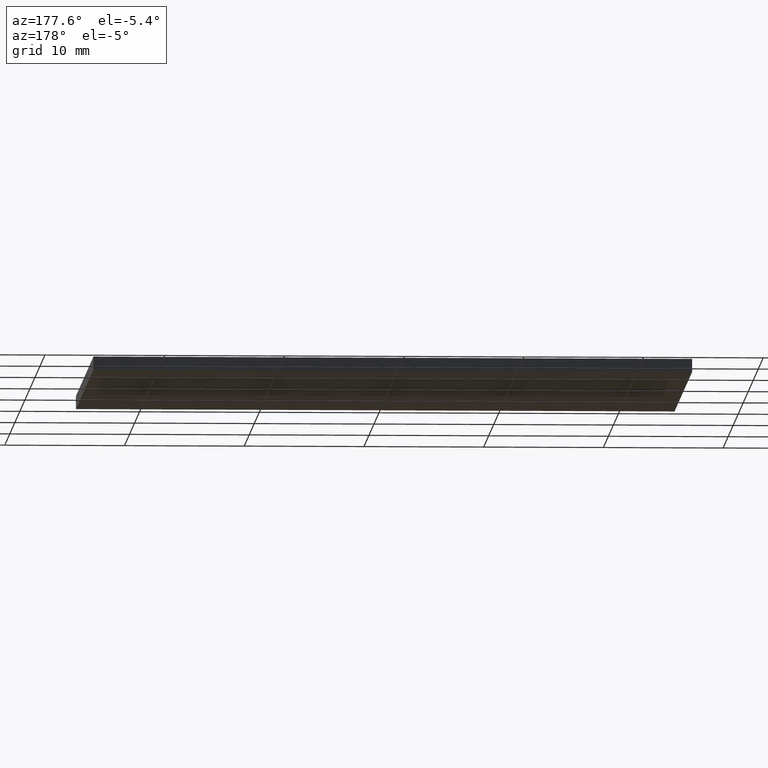
[diagram: clean part render]
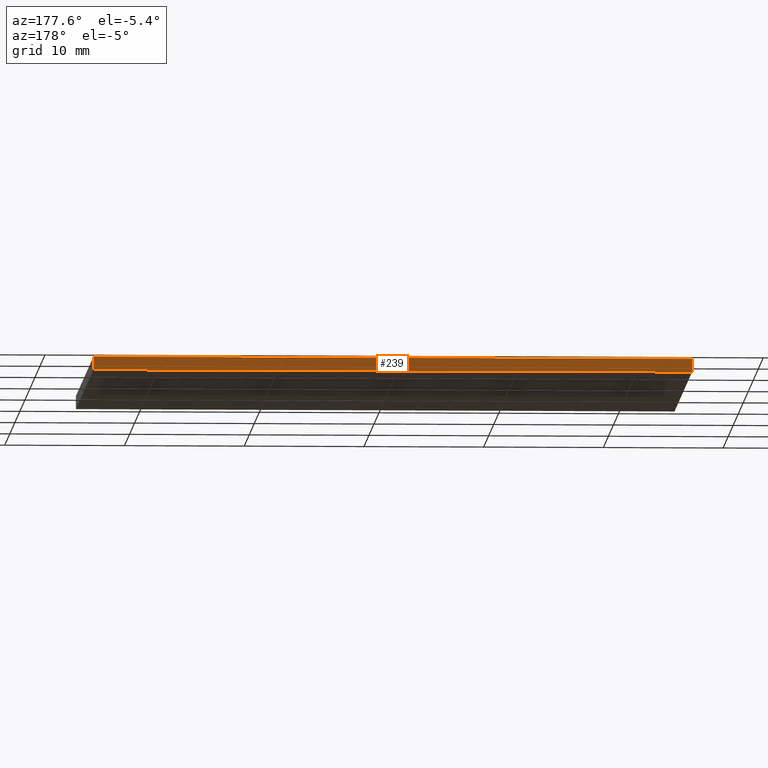
[diagram: same view with one face highlighted and labeled with its STEP entity id]
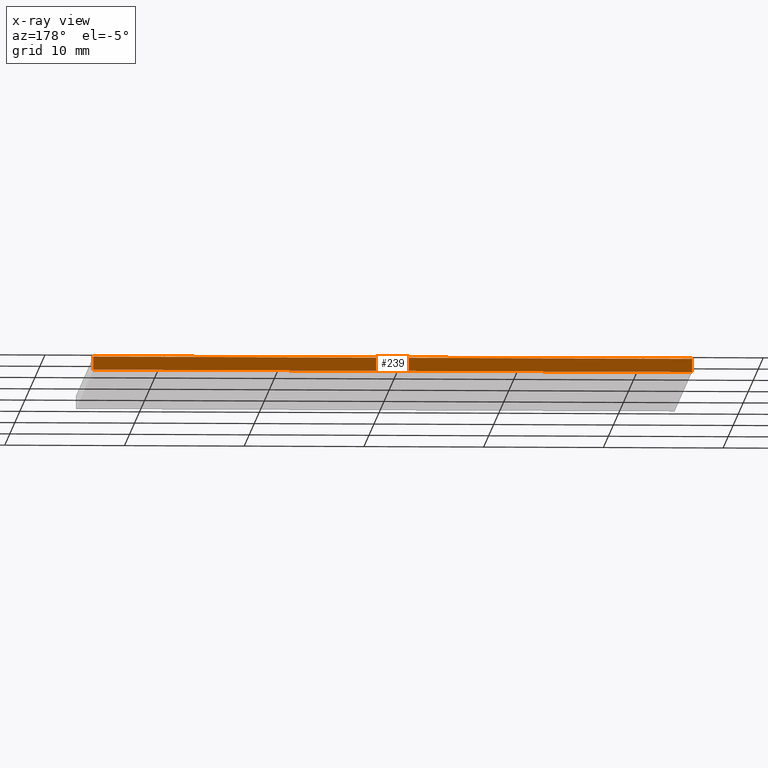
[diagram: x-ray of the same camera — body ghosted, the highlighted face saturated]
A machine part, auxiliary view. The second image highlights one B-rep face of the part: STEP entity #239.
The next image is the same camera in x-ray: the body ghosted, the highlighted face saturated — about 0% of this face is hidden behind the body in this view.
In plain terms, the highlighted planar face has unit normal (0, -1, 0).
Its self-contained STEP definition (entity closure, byte-faithful):
#5 = EDGE_CURVE ( 'NONE', #208, #271, #179, .T. ) ;
#7 = CARTESIAN_POINT ( 'NONE',  ( -25.00000000000000400, 17.50000000000000000, 1.100000000000000100 ) ) ;
#8 = DIRECTION ( 'NONE',  ( 0.0000000000000000000, -0.0000000000000000000, -1.000000000000000000 ) ) ;
#30 = EDGE_CURVE ( 'NONE', #271, #263, #290, .T. ) ;
#32 = DIRECTION ( 'NONE',  ( -1.000000000000000000, -0.0000000000000000000, -0.0000000000000000000 ) ) ;
#37 = ORIENTED_EDGE ( 'NONE', *, *, #30, .T. ) ;
#55 = EDGE_CURVE ( 'NONE', #236, #263, #294, .T. ) ;
#57 = CARTESIAN_POINT ( 'NONE',  ( 24.99999999999999600, 17.50000000000000000, 1.100000000000000100 ) ) ;
#68 = VECTOR ( 'NONE', #32, 1000.000000000000000 ) ;
#71 = VECTOR ( 'NONE', #241, 1000.000000000000000 ) ;
#80 = CARTESIAN_POINT ( 'NONE',  ( 24.99999999999999600, 17.50000000000000000, 1.100000000000000100 ) ) ;
#107 = DIRECTION ( 'NONE',  ( -0.0000000000000000000, -0.0000000000000000000, -1.000000000000000000 ) ) ;
#119 = VECTOR ( 'NONE', #107, 1000.000000000000000 ) ;
#120 = DIRECTION ( 'NONE',  ( 0.0000000000000000000, -1.000000000000000000, 0.0000000000000000000 ) ) ;
#139 = CARTESIAN_POINT ( 'NONE',  ( -25.00000000000000400, 17.50000000000000000, 1.100000000000000100 ) ) ;
#142 = LINE ( 'NONE', #278, #68 ) ;
#169 = EDGE_CURVE ( 'NONE', #208, #236, #142, .T. ) ;
#174 = VECTOR ( 'NONE', #269, 1000.000000000000000 ) ;
#179 = LINE ( 'NONE', #80, #119 ) ;
#192 = AXIS2_PLACEMENT_3D ( 'NONE', #139, #120, #8 ) ;
#201 = ORIENTED_EDGE ( 'NONE', *, *, #5, .T. ) ;
#208 = VERTEX_POINT ( 'NONE', #57 ) ;
#221 = ORIENTED_EDGE ( 'NONE', *, *, #169, .F. ) ;
#223 = CARTESIAN_POINT ( 'NONE',  ( 24.99999999999999600, 17.50000000000000000, 0.0000000000000000000 ) ) ;
#225 = PLANE ( 'NONE',  #192 ) ;
#228 = CARTESIAN_POINT ( 'NONE',  ( -25.00000000000000400, 17.50000000000000000, 0.0000000000000000000 ) ) ;
#229 = FACE_OUTER_BOUND ( 'NONE', #279, .T. ) ;
#236 = VERTEX_POINT ( 'NONE', #301 ) ;
#239 = ADVANCED_FACE ( 'NONE', ( #229 ), #225, .F. ) ;
#241 = DIRECTION ( 'NONE',  ( -0.0000000000000000000, -0.0000000000000000000, -1.000000000000000000 ) ) ;
#250 = ORIENTED_EDGE ( 'NONE', *, *, #55, .F. ) ;
#263 = VERTEX_POINT ( 'NONE', #228 ) ;
#269 = DIRECTION ( 'NONE',  ( -1.000000000000000000, -0.0000000000000000000, -0.0000000000000000000 ) ) ;
#271 = VERTEX_POINT ( 'NONE', #223 ) ;
#278 = CARTESIAN_POINT ( 'NONE',  ( -25.00000000000000400, 17.50000000000000000, 1.100000000000000100 ) ) ;
#279 = EDGE_LOOP ( 'NONE', ( #37, #250, #221, #201 ) ) ;
#290 = LINE ( 'NONE', #296, #174 ) ;
#294 = LINE ( 'NONE', #7, #71 ) ;
#296 = CARTESIAN_POINT ( 'NONE',  ( -25.00000000000000400, 17.50000000000000000, 0.0000000000000000000 ) ) ;
#301 = CARTESIAN_POINT ( 'NONE',  ( -25.00000000000000400, 17.50000000000000000, 1.100000000000000100 ) ) ;